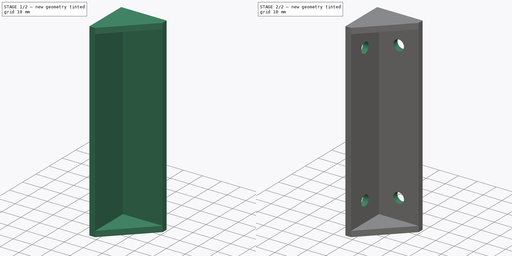
[diagram: build sequence overview — one tinted view per stage of 2, left to right]
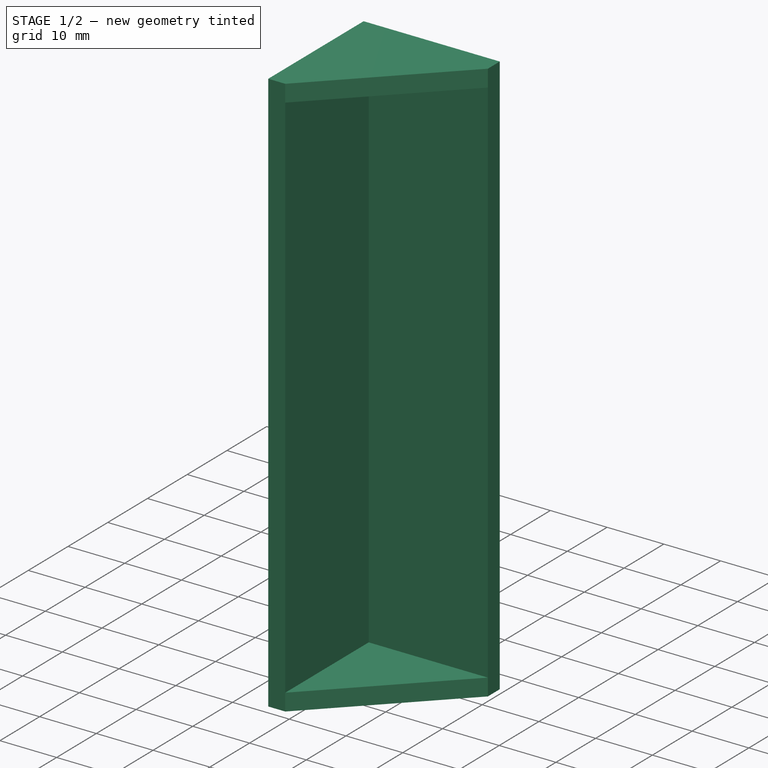
[diagram: stage 1 of 2 — iso view after this stage's code; geometry added in this stage tinted green]
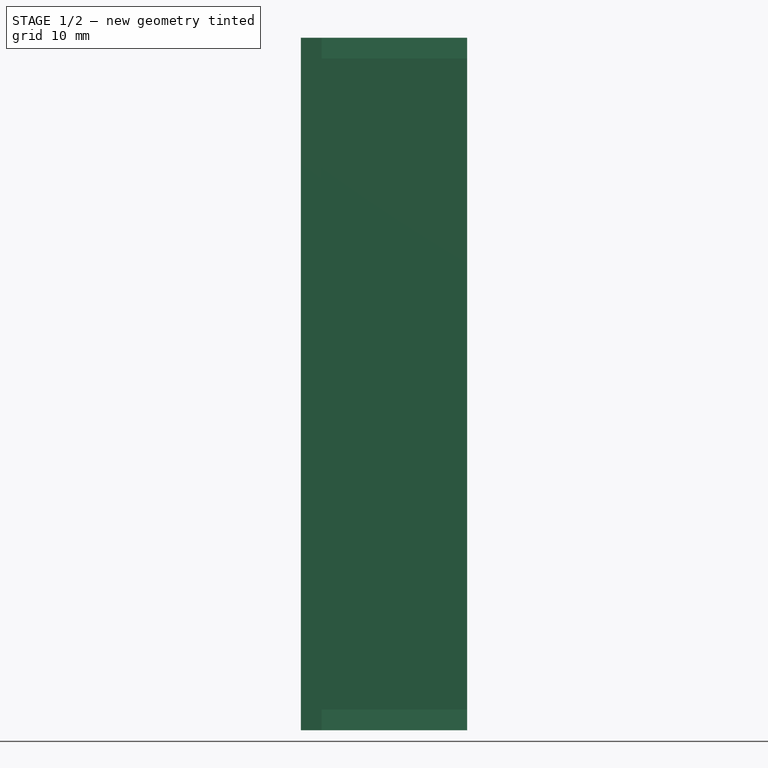
[diagram: stage 1 of 2 — front view after this stage's code; geometry added in this stage tinted green]
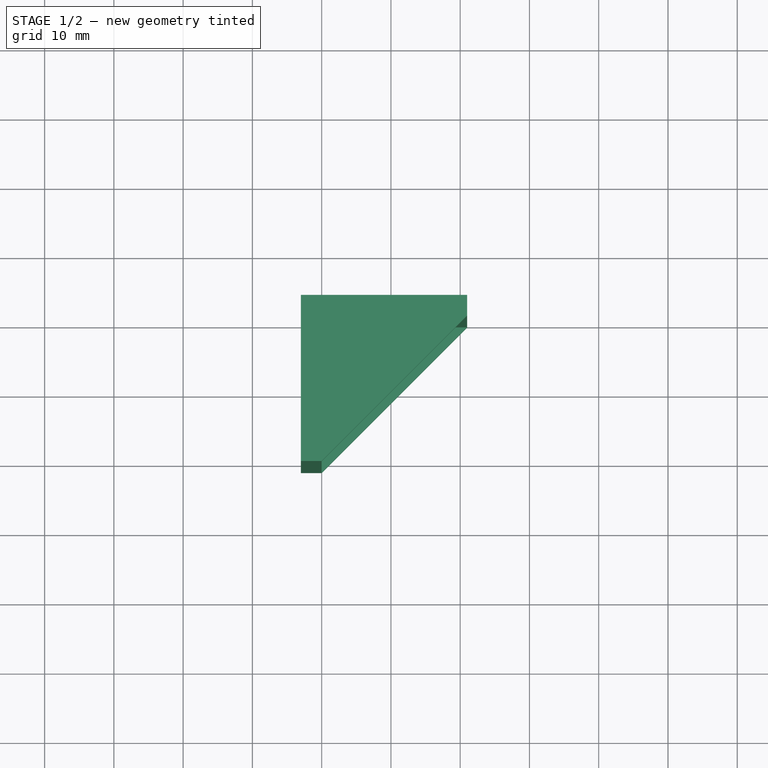
[diagram: stage 1 of 2 — top view after this stage's code; geometry added in this stage tinted green]
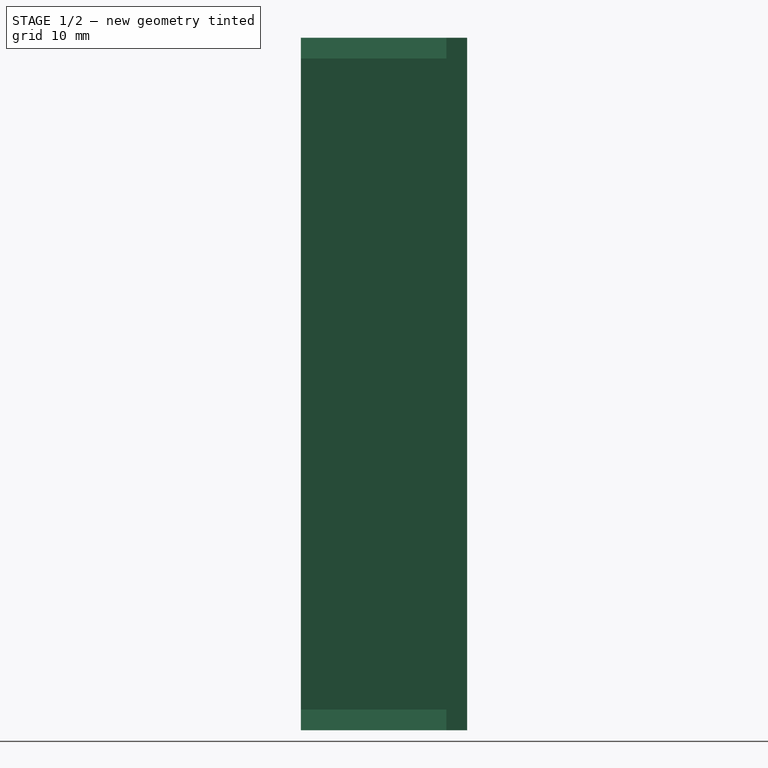
[diagram: stage 1 of 2 — right view after this stage's code; geometry added in this stage tinted green]
FCSTD DOCUMENT  (FreeCAD 0.20R29177 (Git))
Label: Corner mount
License: All rights reserved
LicenseURL: http://en.wikipedia.org/wiki/All_rights_reserved
objects: Sketcher::SketchObject×4, PartDesign::Hole×2, Spreadsheet::Sheet×1, PartDesign::Pad×1, PartDesign::Pocket×1, PartDesign::Body×1
note: 13 computed .brp shape members not serialized (recipe doc carries the construction recipe); baked Part::Feature solids carry a one-line shape summary decoded from their .brp

FEATURE [Sketcher::SketchObject] Sketch
  FullyConstrained = true
  MapMode = 5
  Support = -> [XY_Plane]
  expr: Constraints[11] = Spreadsheet.Width
  expr: Constraints[12] = Spreadsheet.Depth
  expr: Constraints[13] = Spreadsheet.Walls
  sketch-geometry (5):
    g0: LineSegment StartX=-3 StartY=3 StartZ=0 EndX=21 EndY=3 EndZ=0
    g1: LineSegment StartX=21 StartY=3 StartZ=0 EndX=21 EndY=0 EndZ=0
    g2: LineSegment StartX=21 StartY=0 StartZ=0 EndX=0 EndY=-21 EndZ=0
    g3: LineSegment StartX=0 StartY=-21 StartZ=0 EndX=-3 EndY=-21 EndZ=0
    g4: LineSegment StartX=-3 StartY=-21 StartZ=0 EndX=-3 EndY=3 EndZ=0
  constraints (15):
    c: Horizontal(g0)
    c: Coincident(g0,g1)
    c: Vertical(g1)
    c: Coincident(g1,g2)
    c: Coincident(g2,g3)
    c: Horizontal(g3)
    c: Coincident(g3,g4)
    c: Coincident(g4,g0)
    c: Vertical(g4)
    c: Vertical(g2,g-1)
    c: Horizontal(g-1,g1)
    c: DistanceX(g0,g0) = 24
    c: DistanceY(g4,g4) = 24
    c: DistanceY(g1,g1) = 3
    c: Equal(g1,g3)
FEATURE [Spreadsheet::Sheet] Spreadsheet
  cells = A1=Height; B1(Height)=100; A2=Width; B2(Width)=24; A3=Depth; B3(Depth)==B2; A4=Walls; B4(Walls)=3; A5=MountingHole; B5(MountingHole)=5.5
FEATURE [PartDesign::Pad] Pad
  Direction = (0,0,1)
  Length = 100
  Length2 = 10
  Midplane = true
  Profile = -> Sketch
  ReferenceAxis = -> Sketch [N_Axis]
  Type = 0
  expr: Length = Spreadsheet.Height
FEATURE [Sketcher::SketchObject] Sketch001
  FullyConstrained = true
  MapMode = 5
  Support = -> [XY_Plane]
  expr: Constraints[10] = Spreadsheet.Depth
  expr: Constraints[9] = Spreadsheet.Width
  sketch-geometry (4):
    g0: LineSegment StartX=0 StartY=0 StartZ=0 EndX=24 EndY=0 EndZ=0
    g1: LineSegment StartX=24 StartY=0 StartZ=0 EndX=24 EndY=-24 EndZ=0
    g2: LineSegment StartX=24 StartY=-24 StartZ=0 EndX=0 EndY=-24 EndZ=0
    g3: LineSegment StartX=0 StartY=-24 StartZ=0 EndX=0 EndY=0 EndZ=0
  constraints (11):
    c: Coincident(g0,g1)
    c: Coincident(g1,g2)
    c: Coincident(g2,g3)
    c: Coincident(g3,g0)
    c: Horizontal(g0)
    c: Horizontal(g2)
    c: Vertical(g1)
    c: Vertical(g3)
    c: Coincident(g0,g-1)
    c: DistanceX(g0,g0) = 24
    c: DistanceY(g3,g3) = 24
FEATURE [PartDesign::Pocket] Pocket
  BaseFeature = -> Pad
  Direction = (0,0,-1)
  Length = 94
  Length2 = 5
  Midplane = true
  Profile = -> Sketch001
  ReferenceAxis = -> Sketch001 [N_Axis]
  Type = 0
  expr: Length = Spreadsheet.Height - Spreadsheet.Walls * 2
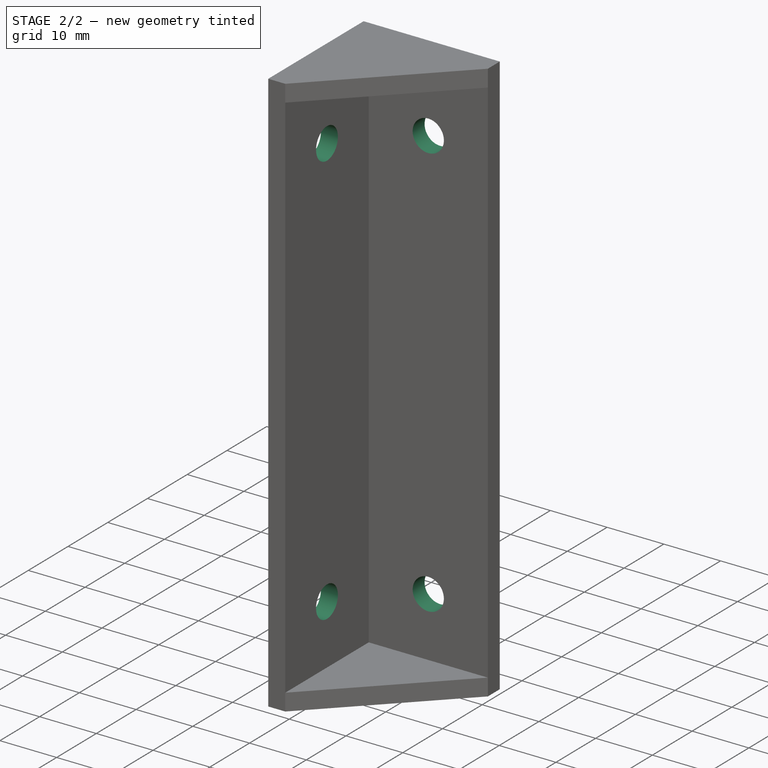
[diagram: stage 2 of 2 — iso view after this stage's code; geometry added in this stage tinted green]
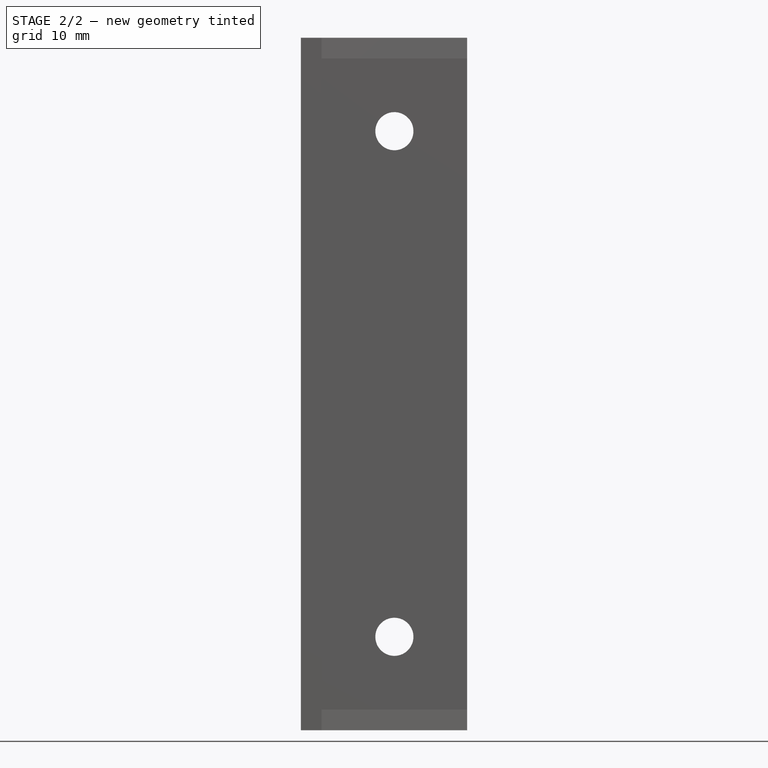
[diagram: stage 2 of 2 — front view after this stage's code; geometry added in this stage tinted green]
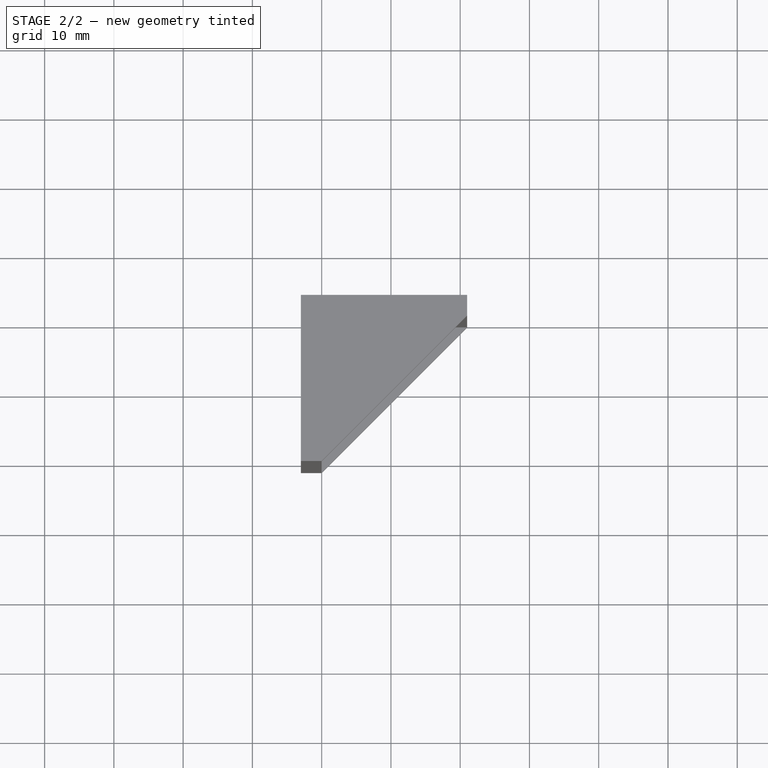
[diagram: stage 2 of 2 — top view after this stage's code; geometry added in this stage tinted green]
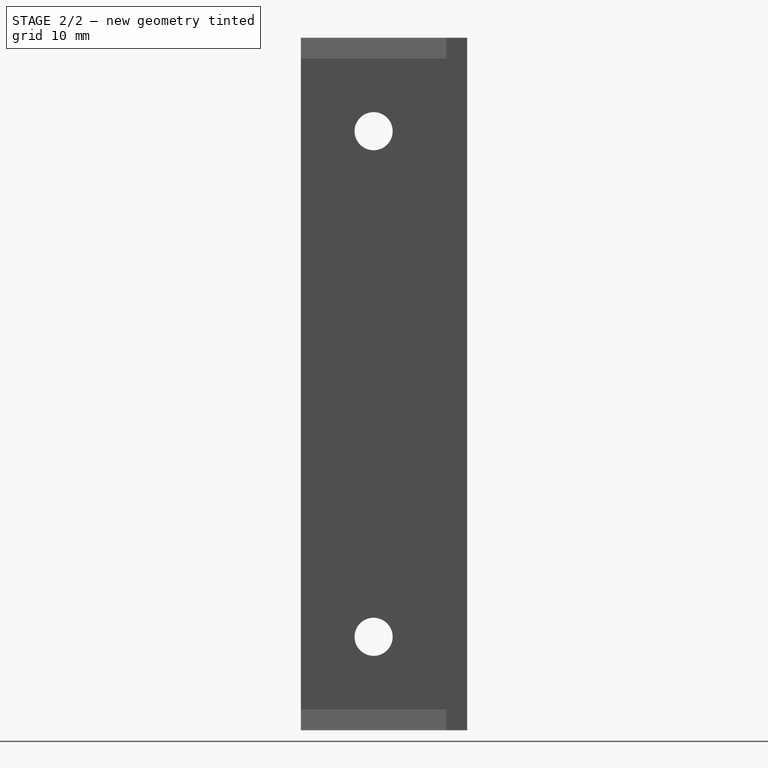
[diagram: stage 2 of 2 — right view after this stage's code; geometry added in this stage tinted green]
FEATURE [Sketcher::SketchObject] Sketch002
  FullyConstrained = false
  MapMode = 5
  Placement = pos=(0,0,0) rot=(0.57735,0.57735,0.57735;2.0944rad)
  Support = -> [YZ_Plane]
  expr: Constraints[0] = (Spreadsheet.Depth - Spreadsheet.Walls) / 2
  expr: Constraints[1] = Spreadsheet.Height / 2 - Spreadsheet.Walls - (Spreadsheet.Depth - Spreadsheet.Walls) / 2
  sketch-geometry (4):
    g0: Circle CenterX=-10.5 CenterY=36.5 CenterZ=0 NormalX=0 NormalY=0 NormalZ=1 AngleXU=0 Radius=2.31493
    g1: Circle CenterX=-10.5 CenterY=-36.5 CenterZ=0 NormalX=0 NormalY=0 NormalZ=1 AngleXU=0 Radius=2.31493
    g2: LineSegment StartX=-10.5 StartY=36.5 StartZ=0 EndX=-10.5 EndY=0 EndZ=0
    g3: LineSegment StartX=-10.5 StartY=0 StartZ=0 EndX=-10.5 EndY=-36.5 EndZ=0
  constraints (10):
    c: DistanceX(g0,g-1) = 10.5
    c: DistanceY(g-1,g0) = 36.5
    c: Coincident(g2,g0)
    c: PointOnObject(g2,g-1)
    c: Vertical(g2)
    c: Coincident(g3,g2)
    c: Coincident(g3,g1)
    c: Vertical(g3)
    c: Equal(g3,g2)
    c: Equal(g0,g1)
FEATURE [Sketcher::SketchObject] Sketch003
  FullyConstrained = false
  MapMode = 5
  Placement = pos=(0,0,0) rot=(1,0,0;1.5708rad)
  Support = -> [XZ_Plane]
  expr: Constraints[5] = Spreadsheet.Height / 2 - Spreadsheet.Walls - (Spreadsheet.Width - Spreadsheet.Walls) / 2
  expr: Constraints[6] = (Spreadsheet.Width - Spreadsheet.Walls) / 2
  sketch-geometry (4):
    g0: LineSegment StartX=10.5 StartY=36.5 StartZ=0 EndX=10.5 EndY=0 EndZ=0
    g1: LineSegment StartX=10.5 StartY=0 StartZ=0 EndX=10.5 EndY=-36.5 EndZ=0
    g2: Circle CenterX=10.5 CenterY=36.5 CenterZ=0 NormalX=0 NormalY=0 NormalZ=1 AngleXU=0 Radius=3.40802
    g3: Circle CenterX=10.5 CenterY=-36.5 CenterZ=0 NormalX=0 NormalY=0 NormalZ=1 AngleXU=0 Radius=3.40802
  constraints (10):
    c: PointOnObject(g0,g-1)
    c: Vertical(g0)
    c: Coincident(g1,g0)
    c: Vertical(g1)
    c: Equal(g0,g1)
    c: DistanceY(g0,g0) = 36.5
    c: DistanceX(g-1,g0) = 10.5
    c: Coincident(g2,g0)
    c: Coincident(g3,g1)
    c: Equal(g2,g3)
FEATURE [PartDesign::Hole] Hole
  BaseFeature = -> Pocket
  CustomThreadClearance = 0
  Depth = 116.04
  DepthType = 1
  Diameter = 5.5
  DrillForDepth = false
  DrillPoint = 1
  DrillPointAngle = 118
  HoleCutCountersinkAngle = 90
  HoleCutCustomValues = false
  HoleCutDepth = 0
  HoleCutDiameter = 6.1
  HoleCutType = 0
  ModelThread = false
  Profile = -> Sketch002
  Tapered = false
  TaperedAngle = 90
  ThreadClass = 0
  ThreadDepth = 116.04
  ThreadDepthType = 0
  ThreadDirection = 0
  ThreadFit = 0
  ThreadSize = 0
  ThreadType = 0
  Threaded = false
  UseCustomThreadClearance = false
  expr: Diameter = Spreadsheet.MountingHole
FEATURE [PartDesign::Hole] Hole001
  BaseFeature = -> Hole
  CustomThreadClearance = 0
  Depth = 116.04
  DepthType = 1
  Diameter = 5.5
  DrillForDepth = false
  DrillPoint = 1
  DrillPointAngle = 118
  HoleCutCountersinkAngle = 90
  HoleCutCustomValues = false
  HoleCutDepth = 0
  HoleCutDiameter = 6.1
  HoleCutType = 0
  ModelThread = false
  Profile = -> Sketch003
  Tapered = false
  TaperedAngle = 90
  ThreadClass = 0
  ThreadDepth = 116.04
  ThreadDepthType = 0
  ThreadDirection = 0
  ThreadFit = 0
  ThreadSize = 0
  ThreadType = 0
  Threaded = false
  UseCustomThreadClearance = false
  expr: Diameter = Spreadsheet.MountingHole
FEATURE [PartDesign::Body] Body
  Group = -> [Sketch,Pad,Sketch001,Pocket,Sketch002,Sketch003,Hole,Hole001]
  Origin = -> Origin
  Tip = -> Hole001
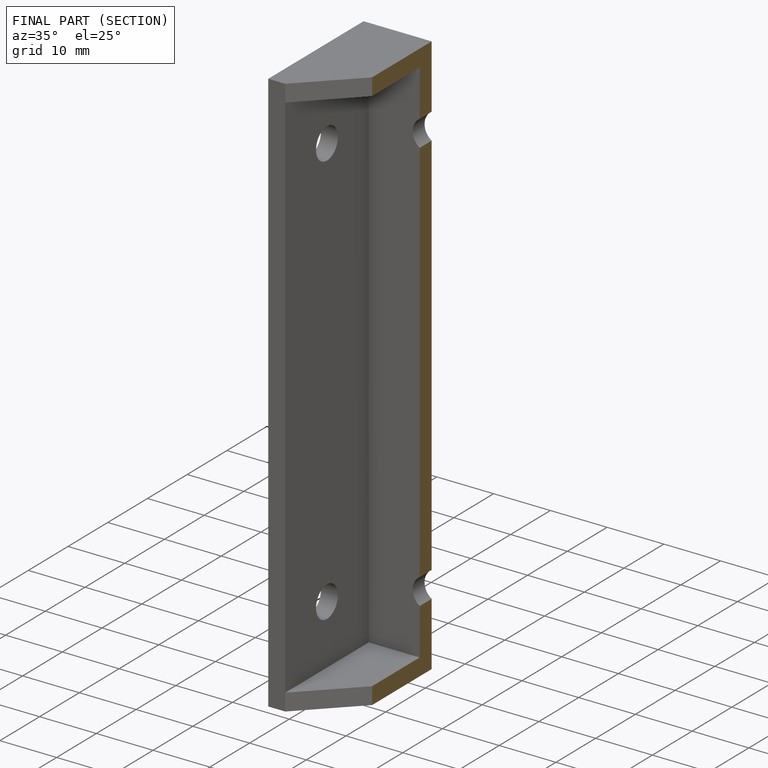
[diagram: finished part — half-section view (interior)]
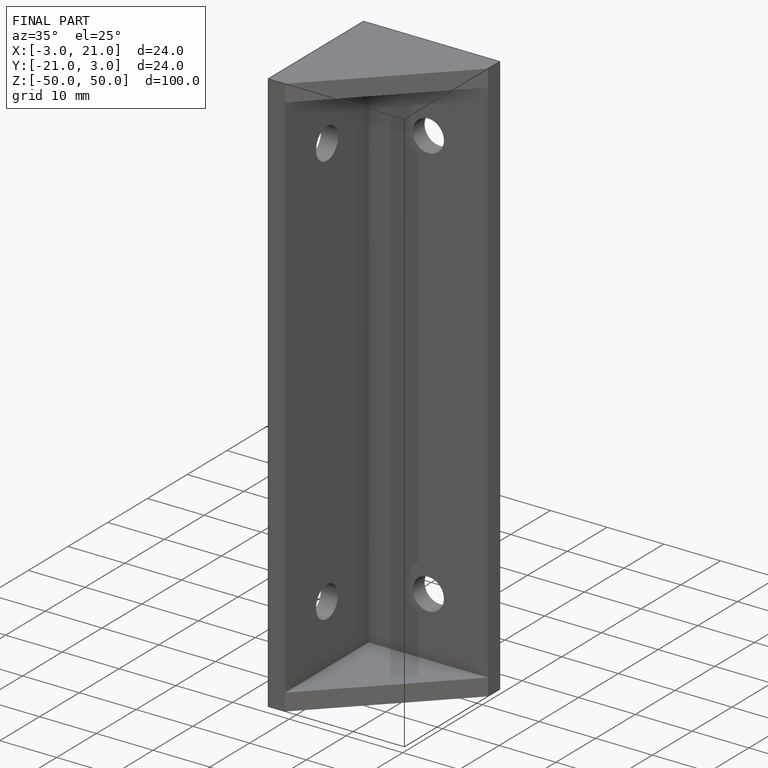
[diagram: finished part — iso view with bounding-box wireframe]
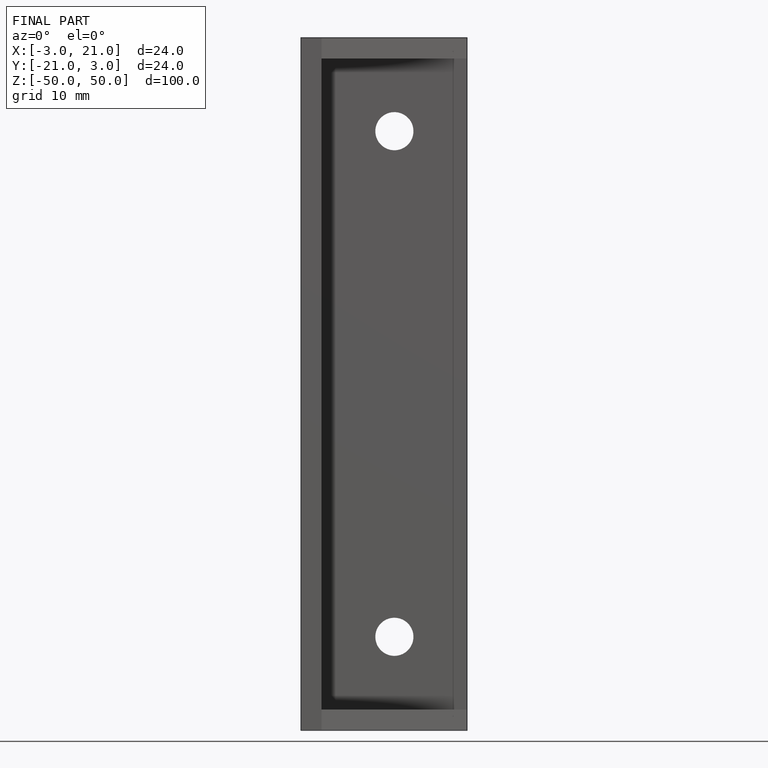
[diagram: finished part — front view with bounding-box wireframe]
